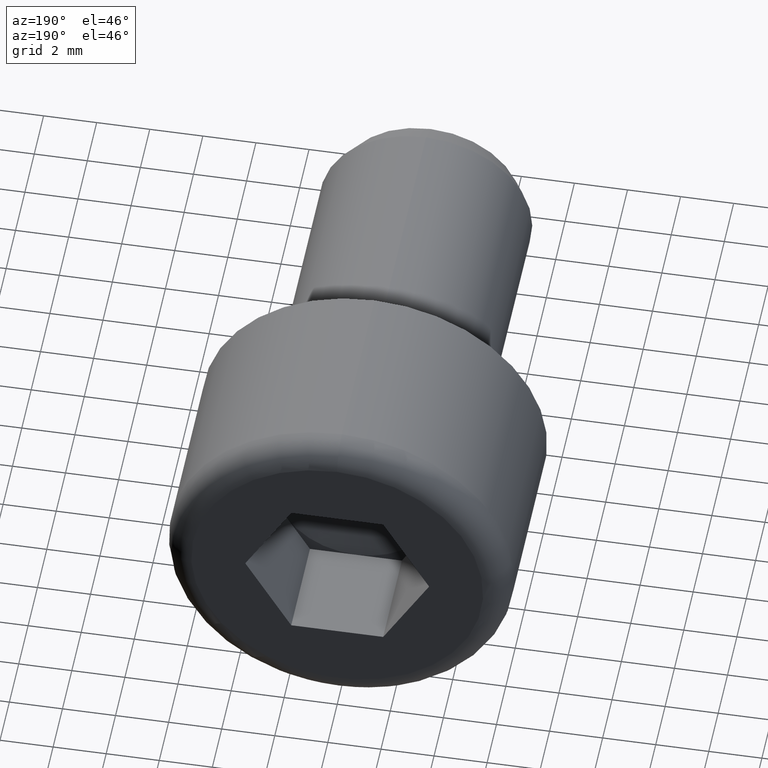
[diagram: clean part render]
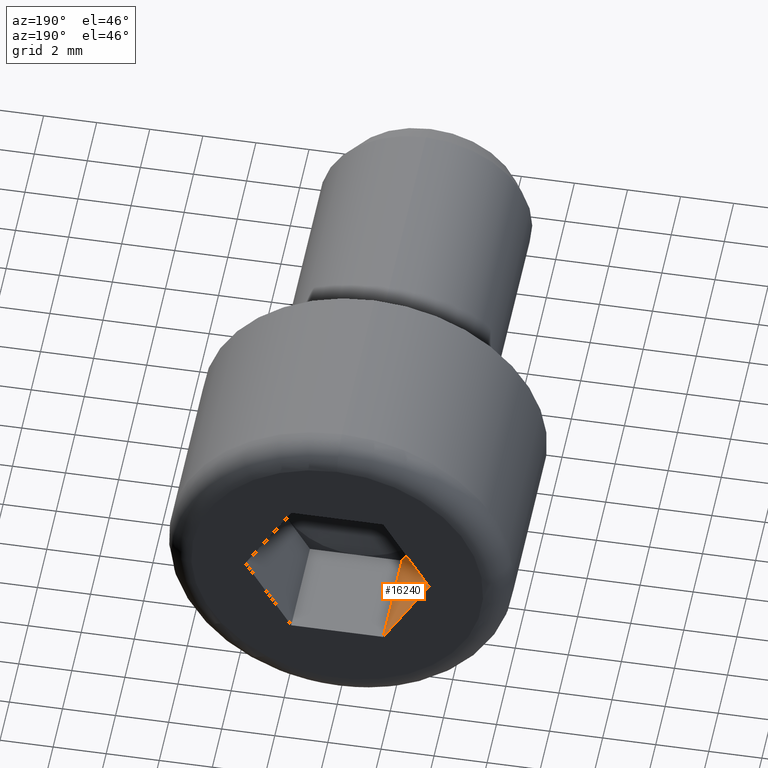
[diagram: same view with one face highlighted and labeled with its STEP entity id]
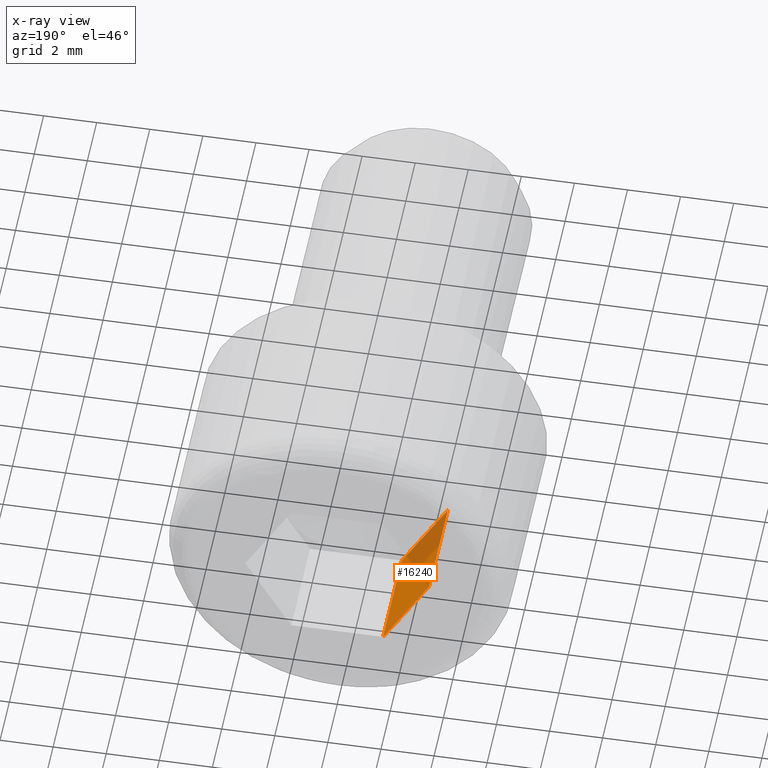
[diagram: x-ray of the same camera — body ghosted, the highlighted face saturated]
A machine part, auxiliary view. The second image highlights one B-rep face of the part: STEP entity #16240.
The next image is the same camera in x-ray: the body ghosted, the highlighted face saturated — about 32% of this face is hidden behind the body in this view.
In plain terms, the highlighted planar face has unit normal (-0.866, 0, -0.5).
Its self-contained STEP definition (entity closure, byte-faithful):
#858 = CARTESIAN_POINT ( 'NONE',  ( -2.598076211353315600, 3.999999999999997300, -1.499999999999999800 ) ) ;
#1087 = VERTEX_POINT ( 'NONE', #11504 ) ;
#1442 = VECTOR ( 'NONE', #6201, 1000.000000000000200 ) ;
#1710 = CARTESIAN_POINT ( 'NONE',  ( -3.464101615137754400, 8.000000000000000000, -4.440650973077132600E-016 ) ) ;
#2032 = DIRECTION ( 'NONE',  ( -0.8660254037844387100, 0.0000000000000000000, -0.5000000000000001100 ) ) ;
#2234 = DIRECTION ( 'NONE',  ( -0.5000000000000000000, 0.0000000000000000000, 0.8660254037844386000 ) ) ;
#2613 = LINE ( 'NONE', #10575, #7769 ) ;
#3947 = AXIS2_PLACEMENT_3D ( 'NONE', #16005, #2032, #2234 ) ;
#5812 = VECTOR ( 'NONE', #10654, 1000.000000000000200 ) ;
#6049 = CARTESIAN_POINT ( 'NONE',  ( -1.732050807568877400, 8.000000000000000000, -2.999999999999999600 ) ) ;
#6201 = DIRECTION ( 'NONE',  ( -0.5000000000000000000, 0.0000000000000000000, 0.8660254037844386000 ) ) ;
#6319 = ORIENTED_EDGE ( 'NONE', *, *, #11427, .T. ) ;
#6373 = VECTOR ( 'NONE', #15513, 1000.000000000000000 ) ;
#6474 = DIRECTION ( 'NONE',  ( -0.0000000000000000000, 1.000000000000000000, -0.0000000000000000000 ) ) ;
#6942 = VERTEX_POINT ( 'NONE', #8972 ) ;
#6944 = VECTOR ( 'NONE', #6474, 1000.000000000000000 ) ;
#7475 = VERTEX_POINT ( 'NONE', #6049 ) ;
#7769 = VECTOR ( 'NONE', #15922, 1000.000000000000200 ) ;
#7802 = CARTESIAN_POINT ( 'NONE',  ( -3.464101615137754400, 4.000000000000000000, -4.440650973077132600E-016 ) ) ;
#7859 = CARTESIAN_POINT ( 'NONE',  ( -1.732050807568877400, 4.000000000000000000, -2.999999999999999600 ) ) ;
#8252 = VERTEX_POINT ( 'NONE', #858 ) ;
#8479 = EDGE_CURVE ( 'NONE', #8252, #6942, #15085, .T. ) ;
#8506 = LINE ( 'NONE', #9058, #6944 ) ;
#8755 = ORIENTED_EDGE ( 'NONE', *, *, #10988, .F. ) ;
#8972 = CARTESIAN_POINT ( 'NONE',  ( -3.464101615137754400, 4.000000000000000000, -4.440650973077132600E-016 ) ) ;
#9058 = CARTESIAN_POINT ( 'NONE',  ( -1.732050807568877400, 4.000000000000000000, -2.999999999999999600 ) ) ;
#9339 = LINE ( 'NONE', #10989, #1442 ) ;
#9475 = ORIENTED_EDGE ( 'NONE', *, *, #9945, .F. ) ;
#9691 = ORIENTED_EDGE ( 'NONE', *, *, #15335, .T. ) ;
#9945 = EDGE_CURVE ( 'NONE', #1087, #8252, #9339, .T. ) ;
#10575 = CARTESIAN_POINT ( 'NONE',  ( -1.732050807568877400, 8.000000000000000000, -2.999999999999999600 ) ) ;
#10654 = DIRECTION ( 'NONE',  ( -0.5000000000000000000, 0.0000000000000000000, 0.8660254037844386000 ) ) ;
#10988 = EDGE_CURVE ( 'NONE', #6942, #12748, #13876, .T. ) ;
#10989 = CARTESIAN_POINT ( 'NONE',  ( -1.732050807568877400, 4.000000000000000000, -2.999999999999999600 ) ) ;
#11427 = EDGE_CURVE ( 'NONE', #7475, #12748, #2613, .T. ) ;
#11504 = CARTESIAN_POINT ( 'NONE',  ( -1.732050807568877400, 4.000000000000000000, -2.999999999999999600 ) ) ;
#12736 = EDGE_LOOP ( 'NONE', ( #6319, #8755, #14785, #9475, #9691 ) ) ;
#12748 = VERTEX_POINT ( 'NONE', #1710 ) ;
#13432 = FACE_OUTER_BOUND ( 'NONE', #12736, .T. ) ;
#13553 = PLANE ( 'NONE',  #3947 ) ;
#13876 = LINE ( 'NONE', #7802, #6373 ) ;
#14785 = ORIENTED_EDGE ( 'NONE', *, *, #8479, .F. ) ;
#15085 = LINE ( 'NONE', #7859, #5812 ) ;
#15335 = EDGE_CURVE ( 'NONE', #1087, #7475, #8506, .T. ) ;
#15513 = DIRECTION ( 'NONE',  ( -0.0000000000000000000, 1.000000000000000000, -0.0000000000000000000 ) ) ;
#15922 = DIRECTION ( 'NONE',  ( -0.5000000000000000000, 0.0000000000000000000, 0.8660254037844386000 ) ) ;
#16005 = CARTESIAN_POINT ( 'NONE',  ( -1.732050807568877400, 4.000000000000000000, -2.999999999999999600 ) ) ;
#16240 = ADVANCED_FACE ( 'NONE', ( #13432 ), #13553, .F. ) ;